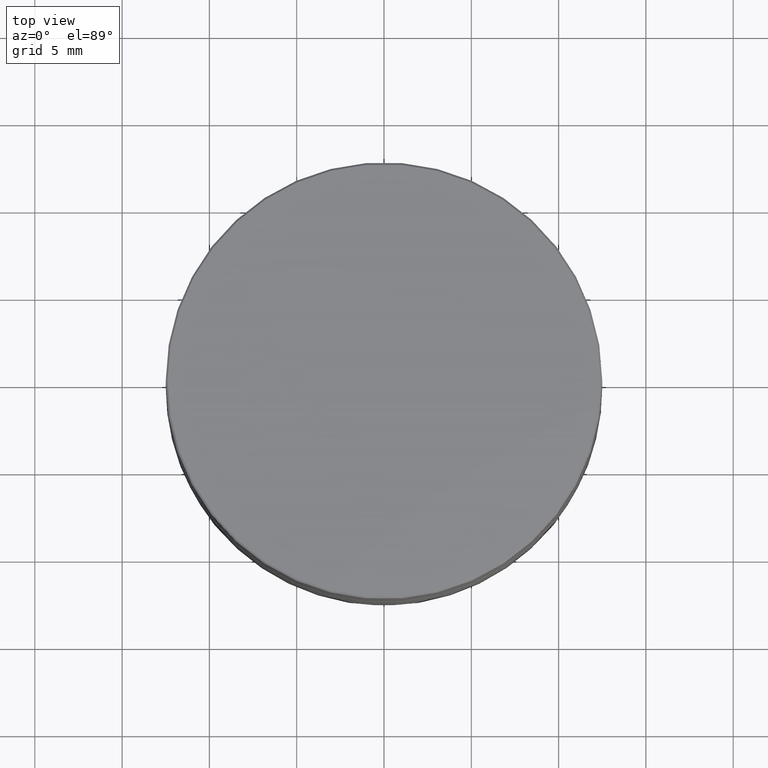
[diagram: clean part render]
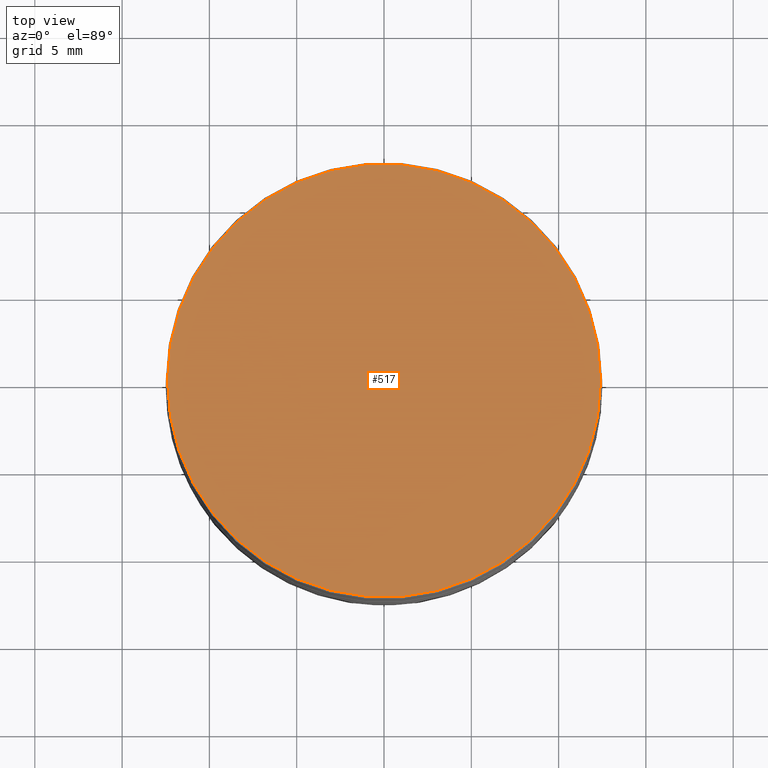
[diagram: same view with one face highlighted and labeled with its STEP entity id]
A machine part, top view. The second image highlights one B-rep face of the part: STEP entity #517.
In plain terms, the highlighted planar face has unit normal (0, -0, 1).
Its self-contained STEP definition (entity closure, byte-faithful):
#39 = EDGE_CURVE ( 'NONE', #1409, #1545, #488, .T. ) ;
#90 = CIRCLE ( 'NONE', #1123, 12.39999999999999503 ) ;
#164 = AXIS2_PLACEMENT_3D ( 'NONE', #393, #1008, #1509 ) ;
#203 = CARTESIAN_POINT ( 'NONE',  ( 12.39999999999999503, 1.524685264938454448E-15, 0.000000000000000000 ) ) ;
#262 = CARTESIAN_POINT ( 'NONE',  ( 0.000000000000000000, 0.000000000000000000, 0.000000000000000000 ) ) ;
#271 = FACE_OUTER_BOUND ( 'NONE', #1428, .T. ) ;
#393 = CARTESIAN_POINT ( 'NONE',  ( 0.000000000000000000, 0.000000000000000000, 0.000000000000000000 ) ) ;
#479 = EDGE_CURVE ( 'NONE', #1545, #1409, #90, .T. ) ;
#488 = CIRCLE ( 'NONE', #164, 12.39999999999999503 ) ;
#517 = ADVANCED_FACE ( 'NONE', ( #271 ), #1057, .T. ) ;
#523 = CARTESIAN_POINT ( 'NONE',  ( 0.000000000000000000, 0.000000000000000000, 0.000000000000000000 ) ) ;
#557 = DIRECTION ( 'NONE',  ( 0.000000000000000000, -0.000000000000000000, 1.000000000000000000 ) ) ;
#809 = CARTESIAN_POINT ( 'NONE',  ( -12.39999999999999503, 0.000000000000000000, 0.000000000000000000 ) ) ;
#911 = DIRECTION ( 'NONE',  ( 1.000000000000000000, 0.000000000000000000, 0.000000000000000000 ) ) ;
#1008 = DIRECTION ( 'NONE',  ( -0.000000000000000000, -0.000000000000000000, 1.000000000000000000 ) ) ;
#1057 = PLANE ( 'NONE',  #1381 ) ;
#1123 = AXIS2_PLACEMENT_3D ( 'NONE', #262, #1276, #1628 ) ;
#1199 = ORIENTED_EDGE ( 'NONE', *, *, #39, .T. ) ;
#1220 = ORIENTED_EDGE ( 'NONE', *, *, #479, .T. ) ;
#1276 = DIRECTION ( 'NONE',  ( -0.000000000000000000, -0.000000000000000000, 1.000000000000000000 ) ) ;
#1381 = AXIS2_PLACEMENT_3D ( 'NONE', #523, #557, #911 ) ;
#1409 = VERTEX_POINT ( 'NONE', #809 ) ;
#1428 = EDGE_LOOP ( 'NONE', ( #1199, #1220 ) ) ;
#1509 = DIRECTION ( 'NONE',  ( 1.000000000000000000, 0.000000000000000000, 0.000000000000000000 ) ) ;
#1545 = VERTEX_POINT ( 'NONE', #203 ) ;
#1628 = DIRECTION ( 'NONE',  ( 1.000000000000000000, 0.000000000000000000, 0.000000000000000000 ) ) ;